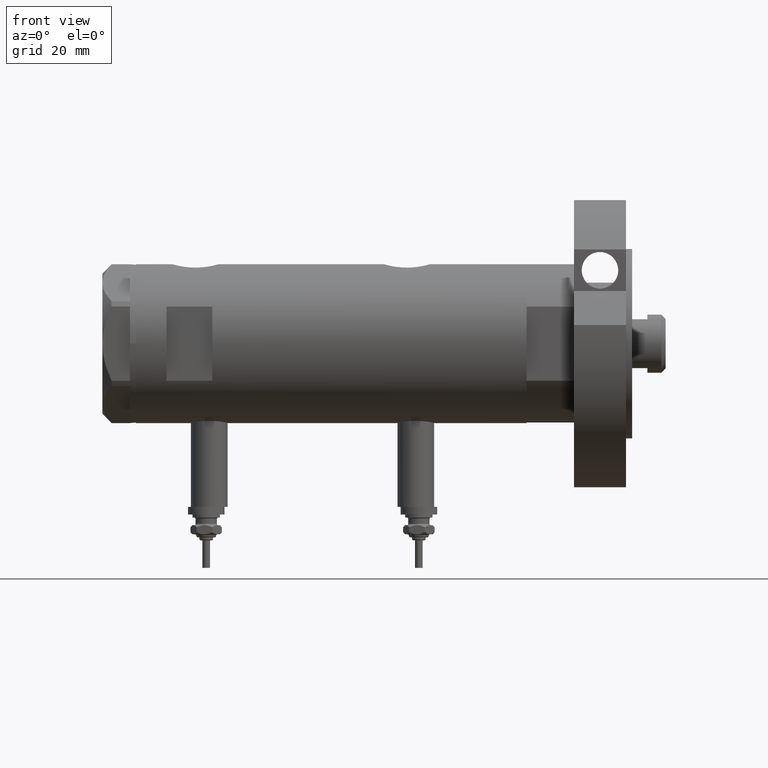
[diagram: clean part render]
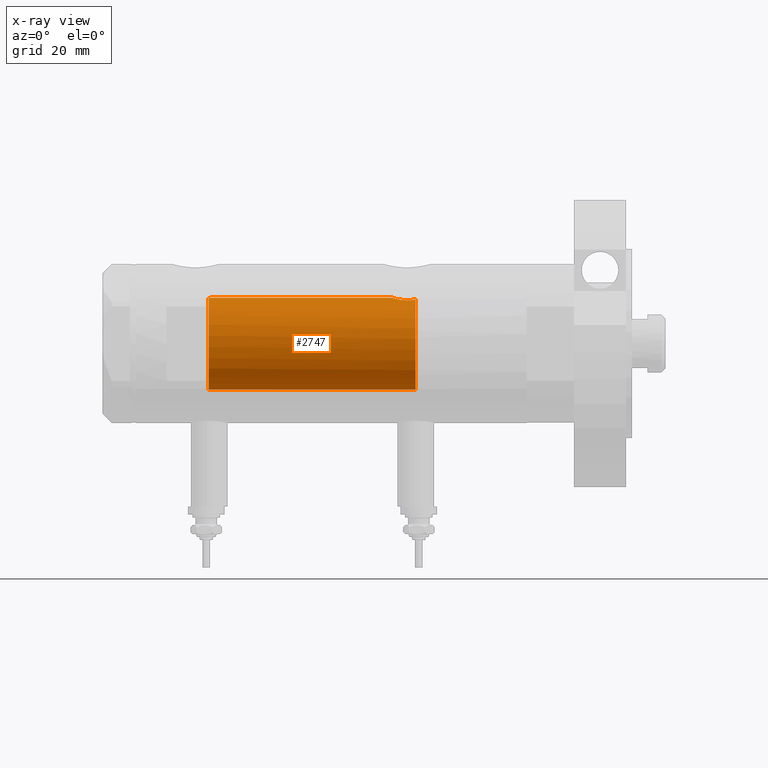
[diagram: x-ray — body ghosted, one internal face saturated and labeled with its STEP entity id]
A machine part, front view, then the same camera in x-ray: the body is ghosted and one INTERNAL B-rep face — a face not visible from any outside direction — is saturated and labeled: STEP entity #2747.
In plain terms, the highlighted cylindrical surface (partial cylindrical patch) has radius 15 mm, axis along (1, 0, -0).
Its self-contained STEP definition (entity closure, byte-faithful):
#57 = ORIENTED_EDGE ( 'NONE', *, *, #4297, .T. ) ;
#160 = CARTESIAN_POINT ( 'NONE',  ( 14.23846660849503465, -4.718934182878723682, -25.95401121469808459 ) ) ;
#633 = CARTESIAN_POINT ( 'NONE',  ( 14.20819413761015326, -4.809312895991455505, -25.51713251522166104 ) ) ;
#675 = CARTESIAN_POINT ( 'NONE',  ( 14.42796883436190569, -4.108435602805831977, -22.10726922759031510 ) ) ;
#760 = CARTESIAN_POINT ( 'NONE',  ( 14.39424372609267522, -4.221002267729139668, -27.17893131093289938 ) ) ;
#796 = CARTESIAN_POINT ( 'NONE',  ( 14.72015646623405871, -2.909233045280604113, -20.82572079632733519 ) ) ;
#840 = CARTESIAN_POINT ( 'NONE',  ( 14.82638779339054480, -2.275571356824482638, 40.15000000000000568 ) ) ;
#959 = CARTESIAN_POINT ( 'NONE',  ( 14.98404828787190191, -0.7909490205761877668, 39.63356230794191504 ) ) ;
#1085 = ORIENTED_EDGE ( 'NONE', *, *, #2871, .T. ) ;
#1174 = DIRECTION ( 'NONE',  ( -0.000000000000000000, -0.000000000000000000, -1.000000000000000000 ) ) ;
#1397 = CARTESIAN_POINT ( 'NONE',  ( 14.25977760983849230, -4.654557688538887739, -23.31736805897653042 ) ) ;
#1550 = CARTESIAN_POINT ( 'NONE',  ( 15.00000000000000000, 5.959273468635536151E-16, -19.88500000000000156 ) ) ;
#1554 = VERTEX_POINT ( 'NONE', #2976 ) ;
#1610 = CARTESIAN_POINT ( 'NONE',  ( 15.00000000000000000, 5.959273468635536151E-16, -19.88500000000000156 ) ) ;
#1653 = ORIENTED_EDGE ( 'NONE', *, *, #6002, .F. ) ;
#1751 = VERTEX_POINT ( 'NONE', #2589 ) ;
#1754 = AXIS2_PLACEMENT_3D ( 'NONE', #4337, #3094, #2876 ) ;
#1869 = CARTESIAN_POINT ( 'NONE',  ( 14.19858338301463085, -4.837406781463695182, -24.18614104090498884 ) ) ;
#2232 = DIRECTION ( 'NONE',  ( -1.000000000000000000, 0.000000000000000000, 0.000000000000000000 ) ) ;
#2265 = CIRCLE ( 'NONE', #5501, 15.00000000000000000 ) ;
#2356 = B_SPLINE_CURVE_WITH_KNOTS ( 'NONE', 3,
 ( #4539, #3891, #959, #3344, #6359, #2704, #7608, #840 ),
 .UNSPECIFIED., .F., .F.,
 ( 4, 2, 2, 4 ),
 ( 2.641598245732904660E-19, 0.001182100180564266394, 0.001773150270846399592, 0.002364200361128532789 ),
 .UNSPECIFIED. ) ;
#2403 = DIRECTION ( 'NONE',  ( 1.000000000000000000, 0.000000000000000000, 0.000000000000000000 ) ) ;
#2494 = EDGE_CURVE ( 'NONE', #1751, #6819, #4403, .T. ) ;
#2589 = CARTESIAN_POINT ( 'NONE',  ( 14.46277203719950855, -3.978470183374505975, -27.55000000000000426 ) ) ;
#2600 = CARTESIAN_POINT ( 'NONE',  ( 14.19797987272029438, -4.839174951492910104, -25.29741451501410765 ) ) ;
#2653 = CARTESIAN_POINT ( 'NONE',  ( 14.20926245015526135, -4.806160851464704287, -23.96377327795615031 ) ) ;
#2704 = CARTESIAN_POINT ( 'NONE',  ( 14.87720562886504538, -1.924385875533401125, 39.97741675737692901 ) ) ;
#2747 = ADVANCED_FACE ( 'NONE', ( #7207 ), #4749, .F. ) ;
#2818 = CARTESIAN_POINT ( 'NONE',  ( 15.00000000000000000, 0.000000000000000000, 39.58500000000000085 ) ) ;
#2825 = CARTESIAN_POINT ( 'NONE',  ( 15.00000000000000000, -0.2216692655473424256, -19.88499999999999801 ) ) ;
#2871 = EDGE_CURVE ( 'NONE', #7010, #1554, #2265, .T. ) ;
#2876 = DIRECTION ( 'NONE',  ( -1.000000000000000000, 0.000000000000000000, 0.000000000000000000 ) ) ;
#2962 = ORIENTED_EDGE ( 'NONE', *, *, #2494, .F. ) ;
#2976 = CARTESIAN_POINT ( 'NONE',  ( 14.82638779339054480, -2.275571356824482638, 40.15000000000000568 ) ) ;
#3094 = DIRECTION ( 'NONE',  ( 0.000000000000000000, 0.000000000000000000, -1.000000000000000000 ) ) ;
#3178 = CARTESIAN_POINT ( 'NONE',  ( 14.46277203719950855, -3.978470183374505975, -27.55000000000000426 ) ) ;
#3191 = CIRCLE ( 'NONE', #1754, 15.00000000000000000 ) ;
#3325 = CARTESIAN_POINT ( 'NONE',  ( -15.00000000000000000, 0.000000000000000000, -27.55000000000000426 ) ) ;
#3342 = CARTESIAN_POINT ( 'NONE',  ( 14.92307637240703677, -1.532123959568890248, -20.12726557582076126 ) ) ;
#3344 = CARTESIAN_POINT ( 'NONE',  ( 14.93900636919599911, -1.364886281976677163, 39.77622504971314044 ) ) ;
#3466 = CARTESIAN_POINT ( 'NONE',  ( 14.90017778876745069, -1.739641523727900596, -20.20130925695125867 ) ) ;
#3572 = DIRECTION ( 'NONE',  ( -0.000000000000000000, -0.000000000000000000, -1.000000000000000000 ) ) ;
#3853 = CARTESIAN_POINT ( 'NONE',  ( 14.49994286062941207, -3.853373987417221702, -21.74743896782911534 ) ) ;
#3891 = CARTESIAN_POINT ( 'NONE',  ( 15.00000000000000178, -0.3999014018875941545, 39.58500000000000085 ) ) ;
#4297 = EDGE_CURVE ( 'NONE', #1751, #7892, #3191, .T. ) ;
#4337 = CARTESIAN_POINT ( 'NONE',  ( 0.000000000000000000, 0.000000000000000000, -27.55000000000000426 ) ) ;
#4338 = CARTESIAN_POINT ( 'NONE',  ( 14.23984499268010673, -4.714778477509576682, -23.53008258614764614 ) ) ;
#4403 = B_SPLINE_CURVE_WITH_KNOTS ( 'NONE', 3,
 ( #3178, #6883, #760, #5686, #6848, #6155, #160, #633, #2600, #5068, #7524, #1869, #2653, #4338, #1397, #6932, #6807, #675, #3853, #6319, #796, #4656, #5276, #3466, #3342, #5932, #5847, #5316, #2825, #1550 ),
 .UNSPECIFIED., .F., .F.,
 ( 4, 2, 2, 2, 2, 2, 2, 2, 2, 2, 2, 2, 2, 2, 4 ),
 ( 0.004672505804584291961, 0.005337629501999298885, 0.006002753199414305810, 0.006667876896829313602, 0.007333000594244319659, 0.007998124291659327451, 0.008663247989074335242, 0.009328371686489341300, 0.009993495383904347357, 0.01132374277873436988, 0.01265399017356439067, 0.01331911387097940366, 0.01398423756839441666, 0.01464936126580942966, 0.01531448496322444265 ),
 .UNSPECIFIED. ) ;
#4495 = CARTESIAN_POINT ( 'NONE',  ( 15.00000000000000000, 1.836970198721029194E-15, 63.95000000000000995 ) ) ;
#4539 = CARTESIAN_POINT ( 'NONE',  ( 15.00000000000000000, 0.000000000000000000, 39.58500000000000085 ) ) ;
#4632 = ORIENTED_EDGE ( 'NONE', *, *, #5900, .F. ) ;
#4656 = CARTESIAN_POINT ( 'NONE',  ( 14.81710879718117724, -2.343063746046469387, -20.48067662538953471 ) ) ;
#4749 = CYLINDRICAL_SURFACE ( 'NONE', #7677, 15.00000000000000000 ) ;
#4773 = EDGE_LOOP ( 'NONE', ( #4632, #7763, #2962, #57, #1653, #1085 ) ) ;
#5064 = CARTESIAN_POINT ( 'NONE',  ( -15.00000000000000000, 0.000000000000000000, 40.15000000000000568 ) ) ;
#5068 = CARTESIAN_POINT ( 'NONE',  ( 14.18781489734108270, -4.868896704194245473, -24.85545969036061464 ) ) ;
#5276 = CARTESIAN_POINT ( 'NONE',  ( 14.84733308118440398, -2.144376633039214219, -20.37751912952715472 ) ) ;
#5316 = CARTESIAN_POINT ( 'NONE',  ( 14.99508877558422704, -0.4434836953032585405, -19.90007684727664028 ) ) ;
#5501 = AXIS2_PLACEMENT_3D ( 'NONE', #6692, #6726, #2403 ) ;
#5686 = CARTESIAN_POINT ( 'NONE',  ( 14.33349657381506681, -4.422893686125039636, -26.78827841538882737 ) ) ;
#5847 = CARTESIAN_POINT ( 'NONE',  ( 14.97537530859971966, -0.8874117095427782598, -19.96137464055827948 ) ) ;
#5858 = VECTOR ( 'NONE', #1174, 1000.000000000000000 ) ;
#5900 = EDGE_CURVE ( 'NONE', #6203, #1554, #2356, .T. ) ;
#5932 = CARTESIAN_POINT ( 'NONE',  ( 14.96064712090283777, -1.106639041422191605, -20.00738179736371336 ) ) ;
#6002 = EDGE_CURVE ( 'NONE', #7010, #7892, #6603, .T. ) ;
#6008 = CARTESIAN_POINT ( 'NONE',  ( 0.000000000000000000, 0.000000000000000000, 63.95000000000000995 ) ) ;
#6072 = CARTESIAN_POINT ( 'NONE',  ( -15.00000000000000000, 0.000000000000000000, 63.95000000000000995 ) ) ;
#6094 = VECTOR ( 'NONE', #7042, 1000.000000000000000 ) ;
#6155 = CARTESIAN_POINT ( 'NONE',  ( 14.25856516724843814, -4.658255869285517825, -26.17044016644936733 ) ) ;
#6203 = VERTEX_POINT ( 'NONE', #2818 ) ;
#6319 = CARTESIAN_POINT ( 'NONE',  ( 14.64727859494137263, -3.248701865452403581, -21.10174013696654782 ) ) ;
#6340 = EDGE_CURVE ( 'NONE', #6203, #6819, #6475, .T. ) ;
#6359 = CARTESIAN_POINT ( 'NONE',  ( 14.92029983160078466, -1.555365312915176323, 39.83609703141412695 ) ) ;
#6475 = LINE ( 'NONE', #4495, #6094 ) ;
#6603 = LINE ( 'NONE', #6072, #5858 ) ;
#6692 = CARTESIAN_POINT ( 'NONE',  ( 0.000000000000000000, 0.000000000000000000, 40.15000000000000568 ) ) ;
#6726 = DIRECTION ( 'NONE',  ( 0.000000000000000000, 0.000000000000000000, 1.000000000000000000 ) ) ;
#6807 = CARTESIAN_POINT ( 'NONE',  ( 14.33594561531103473, -4.414979644548147952, -22.69453393419243525 ) ) ;
#6819 = VERTEX_POINT ( 'NONE', #1610 ) ;
#6848 = CARTESIAN_POINT ( 'NONE',  ( 14.30602371879161439, -4.510400617436905790, -26.58665028800271557 ) ) ;
#6883 = CARTESIAN_POINT ( 'NONE',  ( 14.42775250319760083, -4.105775281508736718, -27.36911445102908758 ) ) ;
#6932 = CARTESIAN_POINT ( 'NONE',  ( 14.30772250772360188, -4.505024017690379523, -22.90010806953218037 ) ) ;
#7010 = VERTEX_POINT ( 'NONE', #5064 ) ;
#7042 = DIRECTION ( 'NONE',  ( -0.000000000000000000, -0.000000000000000000, -1.000000000000000000 ) ) ;
#7207 = FACE_OUTER_BOUND ( 'NONE', #4773, .T. ) ;
#7524 = CARTESIAN_POINT ( 'NONE',  ( 14.18786347641749757, -4.868757996482117711, -24.63322300400293230 ) ) ;
#7608 = CARTESIAN_POINT ( 'NONE',  ( 14.85289483991917336, -2.102865829523694607, 40.05860377881607093 ) ) ;
#7677 = AXIS2_PLACEMENT_3D ( 'NONE', #6008, #3572, #2232 ) ;
#7763 = ORIENTED_EDGE ( 'NONE', *, *, #6340, .T. ) ;
#7892 = VERTEX_POINT ( 'NONE', #3325 ) ;